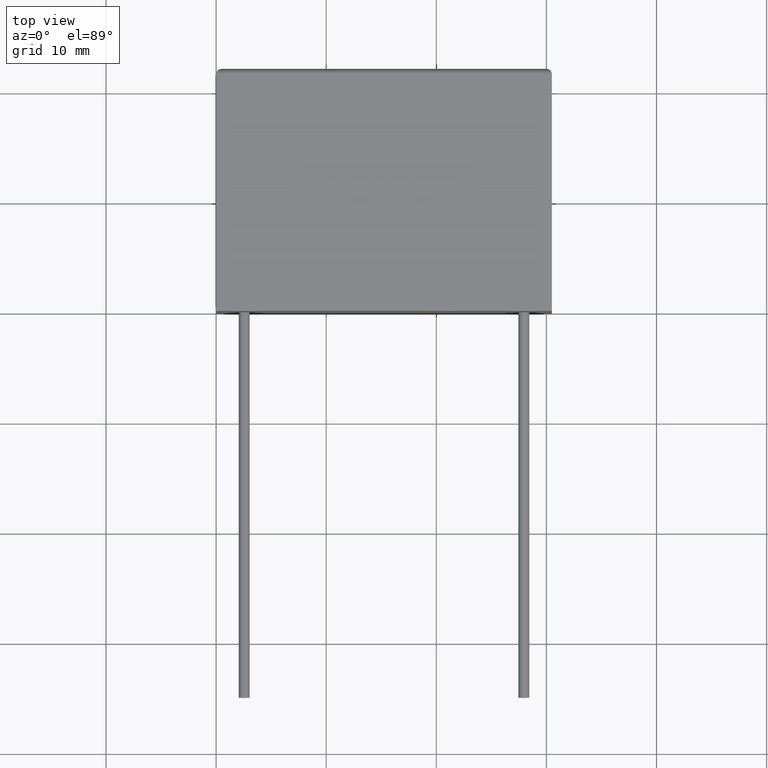
[diagram: clean part render]
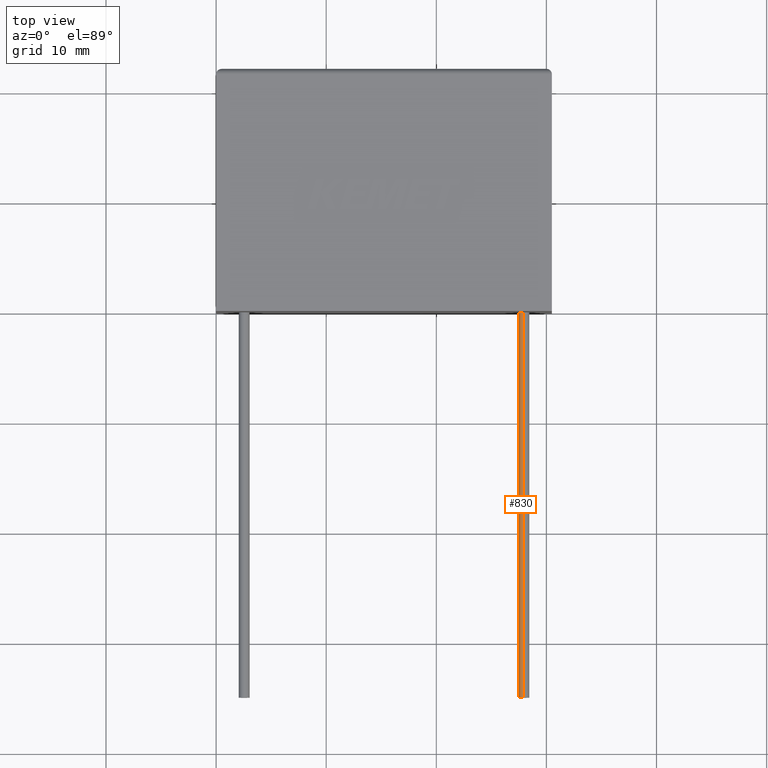
[diagram: same view with one face highlighted and labeled with its STEP entity id]
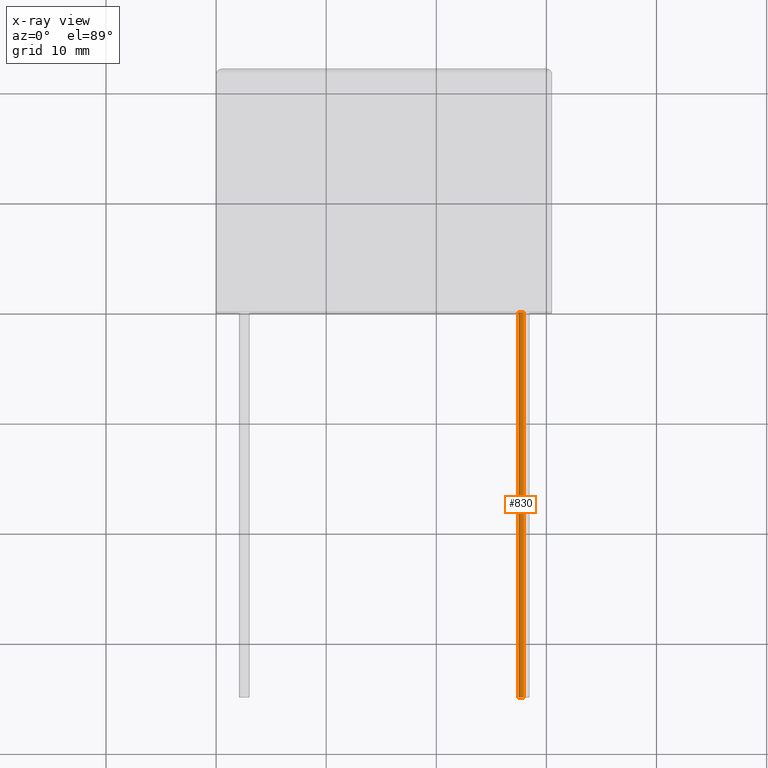
[diagram: x-ray of the same camera — body ghosted, the highlighted face saturated]
A machine part, top view. The second image highlights one B-rep face of the part: STEP entity #830.
The next image is the same camera in x-ray: the body ghosted, the highlighted face saturated — about 0% of this face is hidden behind the body in this view.
In plain terms, the highlighted cylindrical surface (edge-blend (fillet) strip) has radius 0.5 mm, axis along (-0, 1, -0).
Its self-contained STEP definition (entity closure, byte-faithful):
#164 = DIRECTION ( 'NONE',  ( -0.0000000000000000000, 1.000000000000000000, -0.0000000000000000000 ) ) ;
#190 = AXIS2_PLACEMENT_3D ( 'NONE', #1963, #1735, #1934 ) ;
#208 = VERTEX_POINT ( 'NONE', #1021 ) ;
#253 = ORIENTED_EDGE ( 'NONE', *, *, #1323, .F. ) ;
#305 = VERTEX_POINT ( 'NONE', #1278 ) ;
#334 = CARTESIAN_POINT ( 'NONE',  ( 27.94999999999999200, -35.00000000000000000, 7.150000000000000400 ) ) ;
#408 = AXIS2_PLACEMENT_3D ( 'NONE', #668, #164, #873 ) ;
#462 = VERTEX_POINT ( 'NONE', #334 ) ;
#503 = EDGE_CURVE ( 'NONE', #1173, #305, #674, .T. ) ;
#531 = CYLINDRICAL_SURFACE ( 'NONE', #190, 0.5000000000000004400 ) ;
#630 = DIRECTION ( 'NONE',  ( -0.0000000000000000000, 1.000000000000000000, -0.0000000000000000000 ) ) ;
#641 = DIRECTION ( 'NONE',  ( 0.0000000000000000000, 0.0000000000000000000, -1.000000000000000000 ) ) ;
#668 = CARTESIAN_POINT ( 'NONE',  ( 27.94999999999999200, -35.00000000000000000, 7.650000000000000400 ) ) ;
#674 = LINE ( 'NONE', #2408, #1078 ) ;
#830 = ADVANCED_FACE ( 'NONE', ( #2437 ), #531, .T. ) ;
#873 = DIRECTION ( 'NONE',  ( 0.0000000000000000000, 0.0000000000000000000, -1.000000000000000000 ) ) ;
#1021 = CARTESIAN_POINT ( 'NONE',  ( 27.94999999999999200, 0.0000000000000000000, 7.150000000000000400 ) ) ;
#1078 = VECTOR ( 'NONE', #1415, 1000.000000000000000 ) ;
#1173 = VERTEX_POINT ( 'NONE', #1426 ) ;
#1202 = CARTESIAN_POINT ( 'NONE',  ( 27.94999999999999200, 0.0000000000000000000, 7.650000000000000400 ) ) ;
#1250 = VECTOR ( 'NONE', #630, 1000.000000000000000 ) ;
#1262 = EDGE_LOOP ( 'NONE', ( #253, #1801, #2193, #1403 ) ) ;
#1278 = CARTESIAN_POINT ( 'NONE',  ( 27.94999999999999200, 0.0000000000000000000, 8.150000000000000400 ) ) ;
#1323 = EDGE_CURVE ( 'NONE', #462, #208, #2391, .T. ) ;
#1365 = AXIS2_PLACEMENT_3D ( 'NONE', #1202, #1418, #641 ) ;
#1403 = ORIENTED_EDGE ( 'NONE', *, *, #2483, .F. ) ;
#1415 = DIRECTION ( 'NONE',  ( -0.0000000000000000000, 1.000000000000000000, -0.0000000000000000000 ) ) ;
#1418 = DIRECTION ( 'NONE',  ( -0.0000000000000000000, 1.000000000000000000, -0.0000000000000000000 ) ) ;
#1421 = CIRCLE ( 'NONE', #1365, 0.5000000000000004400 ) ;
#1426 = CARTESIAN_POINT ( 'NONE',  ( 27.94999999999999200, -35.00000000000000000, 8.150000000000000400 ) ) ;
#1512 = CIRCLE ( 'NONE', #408, 0.5000000000000004400 ) ;
#1735 = DIRECTION ( 'NONE',  ( -0.0000000000000000000, 1.000000000000000000, -0.0000000000000000000 ) ) ;
#1780 = EDGE_CURVE ( 'NONE', #462, #1173, #1512, .T. ) ;
#1801 = ORIENTED_EDGE ( 'NONE', *, *, #1780, .T. ) ;
#1934 = DIRECTION ( 'NONE',  ( 0.0000000000000000000, 0.0000000000000000000, 1.000000000000000000 ) ) ;
#1963 = CARTESIAN_POINT ( 'NONE',  ( 27.94999999999999200, -35.00000000000000000, 7.650000000000000400 ) ) ;
#2193 = ORIENTED_EDGE ( 'NONE', *, *, #503, .T. ) ;
#2257 = CARTESIAN_POINT ( 'NONE',  ( 27.94999999999999200, -35.00000000000000000, 7.150000000000000400 ) ) ;
#2391 = LINE ( 'NONE', #2257, #1250 ) ;
#2408 = CARTESIAN_POINT ( 'NONE',  ( 27.94999999999999200, -35.00000000000000000, 8.150000000000000400 ) ) ;
#2437 = FACE_OUTER_BOUND ( 'NONE', #1262, .T. ) ;
#2483 = EDGE_CURVE ( 'NONE', #208, #305, #1421, .T. ) ;